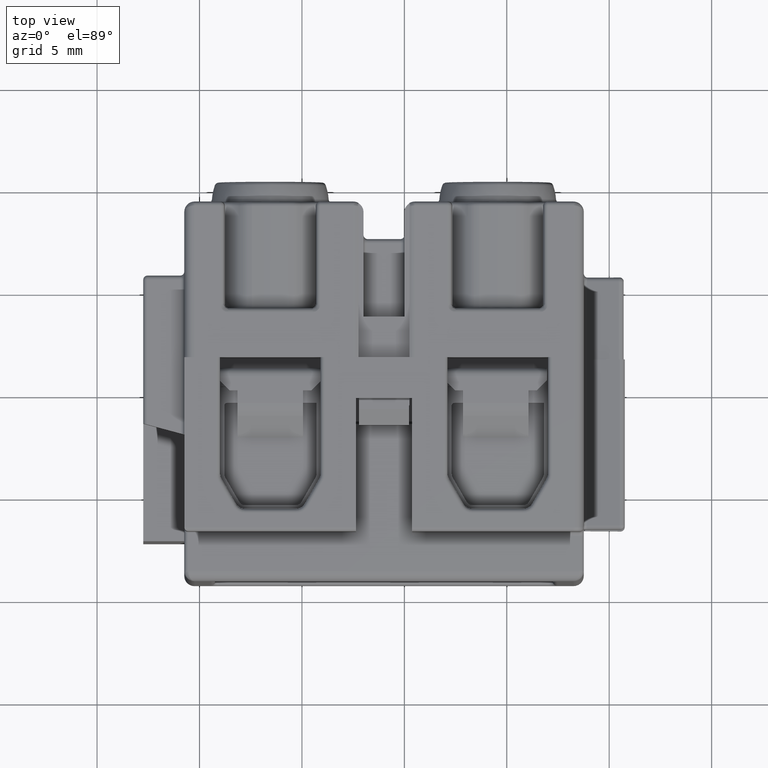
[diagram: clean part render]
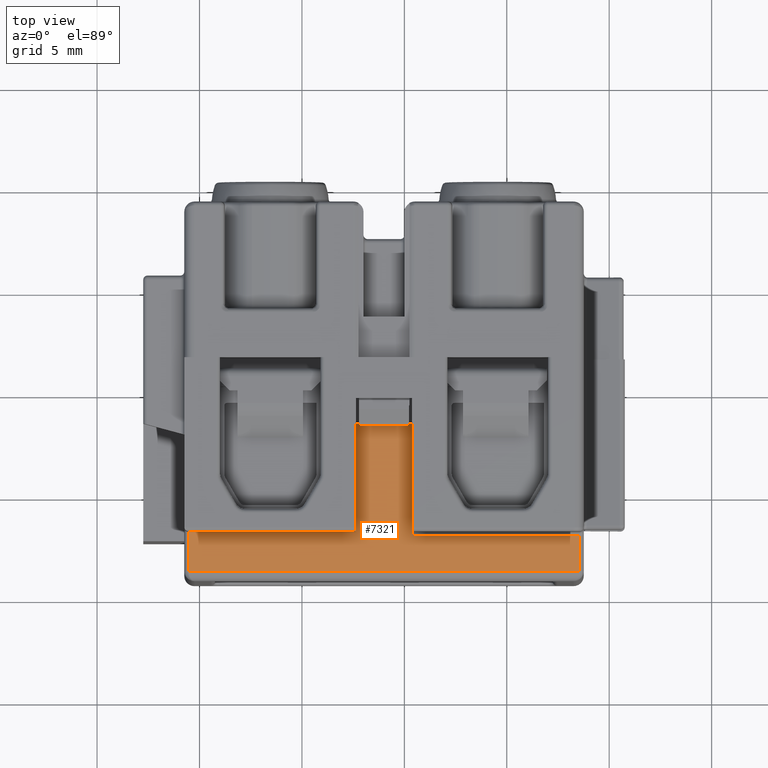
[diagram: same view with one face highlighted and labeled with its STEP entity id]
A machine part, top view. The second image highlights one B-rep face of the part: STEP entity #7321.
In plain terms, the highlighted planar face has unit normal (0, 0, 1).
Its self-contained STEP definition (entity closure, byte-faithful):
#2782 = VECTOR ( 'NONE', #26640, 1000.000000000000000 ) ;
#2795 = VECTOR ( 'NONE', #26630, 1000.000000000000000 ) ;
#2800 = VECTOR ( 'NONE', #26685, 1000.000000000000000 ) ;
#2802 = VECTOR ( 'NONE', #26679, 1000.000000000000000 ) ;
#2820 = VECTOR ( 'NONE', #26665, 1000.000000000000000 ) ;
#3145 = VECTOR ( 'NONE', #26525, 1000.000000000000000 ) ;
#3164 = VECTOR ( 'NONE', #26573, 1000.000000000000000 ) ;
#3174 = VECTOR ( 'NONE', #26588, 1000.000000000000000 ) ;
#4245 = EDGE_LOOP ( 'NONE', ( #4529, #4472, #4540, #4492, #4470, #4520, #4553, #4552 ) ) ;
#4470 = ORIENTED_EDGE ( 'NONE', *, *, #7656, .T. ) ;
#4472 = ORIENTED_EDGE ( 'NONE', *, *, #7624, .T. ) ;
#4492 = ORIENTED_EDGE ( 'NONE', *, *, #7669, .T. ) ;
#4520 = ORIENTED_EDGE ( 'NONE', *, *, #7636, .F. ) ;
#4529 = ORIENTED_EDGE ( 'NONE', *, *, #7650, .T. ) ;
#4540 = ORIENTED_EDGE ( 'NONE', *, *, #7661, .T. ) ;
#4552 = ORIENTED_EDGE ( 'NONE', *, *, #7639, .F. ) ;
#4553 = ORIENTED_EDGE ( 'NONE', *, *, #7642, .T. ) ;
#5168 = CARTESIAN_POINT ( 'NONE',  ( 18.55655536988785300, 27.94973753280830000, -2.922838019615115400 ) ) ;
#5233 = CARTESIAN_POINT ( 'NONE',  ( 18.55655536988785300, 26.24973753280830000, -2.922838019615115400 ) ) ;
#5255 = CARTESIAN_POINT ( 'NONE',  ( 7.631555369887840000, 28.14973753280830200, -2.922838019615115400 ) ) ;
#5262 = CARTESIAN_POINT ( 'NONE',  ( 10.38155536988784000, 33.42916039621430700, -2.922838019615115400 ) ) ;
#5300 = CARTESIAN_POINT ( 'NONE',  ( 10.38155536988784000, 27.94973753280830000, -2.922838019615115400 ) ) ;
#5315 = CARTESIAN_POINT ( 'NONE',  ( -0.5434446301121630400, 26.24973753280830000, -2.922838019615115400 ) ) ;
#5317 = CARTESIAN_POINT ( 'NONE',  ( 7.631555369887840000, 33.42916039621430700, -2.922838019615115400 ) ) ;
#5707 = AXIS2_PLACEMENT_3D ( 'NONE', #30271, #30277, #30290 ) ;
#5717 = VERTEX_POINT ( 'NONE', #5168 ) ;
#5756 = VERTEX_POINT ( 'NONE', #5255 ) ;
#5760 = VERTEX_POINT ( 'NONE', #5262 ) ;
#5785 = VERTEX_POINT ( 'NONE', #5233 ) ;
#5849 = VERTEX_POINT ( 'NONE', #5315 ) ;
#5859 = VERTEX_POINT ( 'NONE', #5317 ) ;
#5860 = VERTEX_POINT ( 'NONE', #5300 ) ;
#7321 = ADVANCED_FACE ( 'NONE', ( #30254 ), #30269, .T. ) ;
#7624 = EDGE_CURVE ( 'NONE', #21052, #5849, #26519, .T. ) ;
#7636 = EDGE_CURVE ( 'NONE', #5760, #5860, #26590, .T. ) ;
#7639 = EDGE_CURVE ( 'NONE', #5756, #5859, #26571, .T. ) ;
#7642 = EDGE_CURVE ( 'NONE', #5760, #5859, #26593, .T. ) ;
#7650 = EDGE_CURVE ( 'NONE', #5756, #21052, #26615, .T. ) ;
#7656 = EDGE_CURVE ( 'NONE', #5717, #5860, #26616, .T. ) ;
#7661 = EDGE_CURVE ( 'NONE', #5849, #5785, #26674, .T. ) ;
#7669 = EDGE_CURVE ( 'NONE', #5785, #5717, #26664, .T. ) ;
#10769 = CARTESIAN_POINT ( 'NONE',  ( -0.5434446301121639300, 28.14973753280830200, -2.922838019615115400 ) ) ;
#21052 = VERTEX_POINT ( 'NONE', #10769 ) ;
#26519 = LINE ( 'NONE', #26520, #3145 ) ;
#26520 = CARTESIAN_POINT ( 'NONE',  ( -0.5434446301121630400, 36.64973753280830200, -2.922838019615115400 ) ) ;
#26525 = DIRECTION ( 'NONE',  ( 0.0000000000000000000, -1.000000000000000000, 0.0000000000000000000 ) ) ;
#26571 = LINE ( 'NONE', #26587, #3174 ) ;
#26572 = CARTESIAN_POINT ( 'NONE',  ( 10.38155536988784000, 37.78987010107894700, -2.922838019615115400 ) ) ;
#26573 = DIRECTION ( 'NONE',  ( 0.0000000000000000000, -1.000000000000000000, 0.0000000000000000000 ) ) ;
#26575 = CARTESIAN_POINT ( 'NONE',  ( 10.00655536988784200, 33.42916039621430700, -2.922838019615115400 ) ) ;
#26587 = CARTESIAN_POINT ( 'NONE',  ( 7.631555369887840000, 37.78987010107894700, -2.922838019615115400 ) ) ;
#26588 = DIRECTION ( 'NONE',  ( 0.0000000000000000000, 1.000000000000000000, 0.0000000000000000000 ) ) ;
#26590 = LINE ( 'NONE', #26572, #3164 ) ;
#26593 = LINE ( 'NONE', #26575, #2795 ) ;
#26608 = CARTESIAN_POINT ( 'NONE',  ( 8.006555369887841800, 28.14973753280830200, -2.922838019615115400 ) ) ;
#26615 = LINE ( 'NONE', #26608, #2782 ) ;
#26616 = LINE ( 'NONE', #26684, #2800 ) ;
#26630 = DIRECTION ( 'NONE',  ( -1.000000000000000000, 0.0000000000000000000, 0.0000000000000000000 ) ) ;
#26640 = DIRECTION ( 'NONE',  ( -1.000000000000000000, 0.0000000000000000000, 0.0000000000000000000 ) ) ;
#26664 = LINE ( 'NONE', #26675, #2820 ) ;
#26665 = DIRECTION ( 'NONE',  ( 0.0000000000000000000, 1.000000000000000000, 0.0000000000000000000 ) ) ;
#26674 = LINE ( 'NONE', #26694, #2802 ) ;
#26675 = CARTESIAN_POINT ( 'NONE',  ( 18.55655536988785300, 36.64973753280830200, -2.922838019615115400 ) ) ;
#26679 = DIRECTION ( 'NONE',  ( 1.000000000000000000, 0.0000000000000000000, 0.0000000000000000000 ) ) ;
#26684 = CARTESIAN_POINT ( 'NONE',  ( 10.00655536988784200, 27.94973753280830000, -2.922838019615115400 ) ) ;
#26685 = DIRECTION ( 'NONE',  ( -1.000000000000000000, 0.0000000000000000000, 0.0000000000000000000 ) ) ;
#26694 = CARTESIAN_POINT ( 'NONE',  ( 10.00655536988784200, 26.24973753280830000, -2.922838019615115400 ) ) ;
#30254 = FACE_OUTER_BOUND ( 'NONE', #4245, .T. ) ;
#30269 = PLANE ( 'NONE',  #5707 ) ;
#30271 = CARTESIAN_POINT ( 'NONE',  ( 10.00655536988784200, 36.64973753280830200, -2.922838019615115400 ) ) ;
#30277 = DIRECTION ( 'NONE',  ( 0.0000000000000000000, 0.0000000000000000000, 1.000000000000000000 ) ) ;
#30290 = DIRECTION ( 'NONE',  ( 1.000000000000000000, 0.0000000000000000000, 0.0000000000000000000 ) ) ;